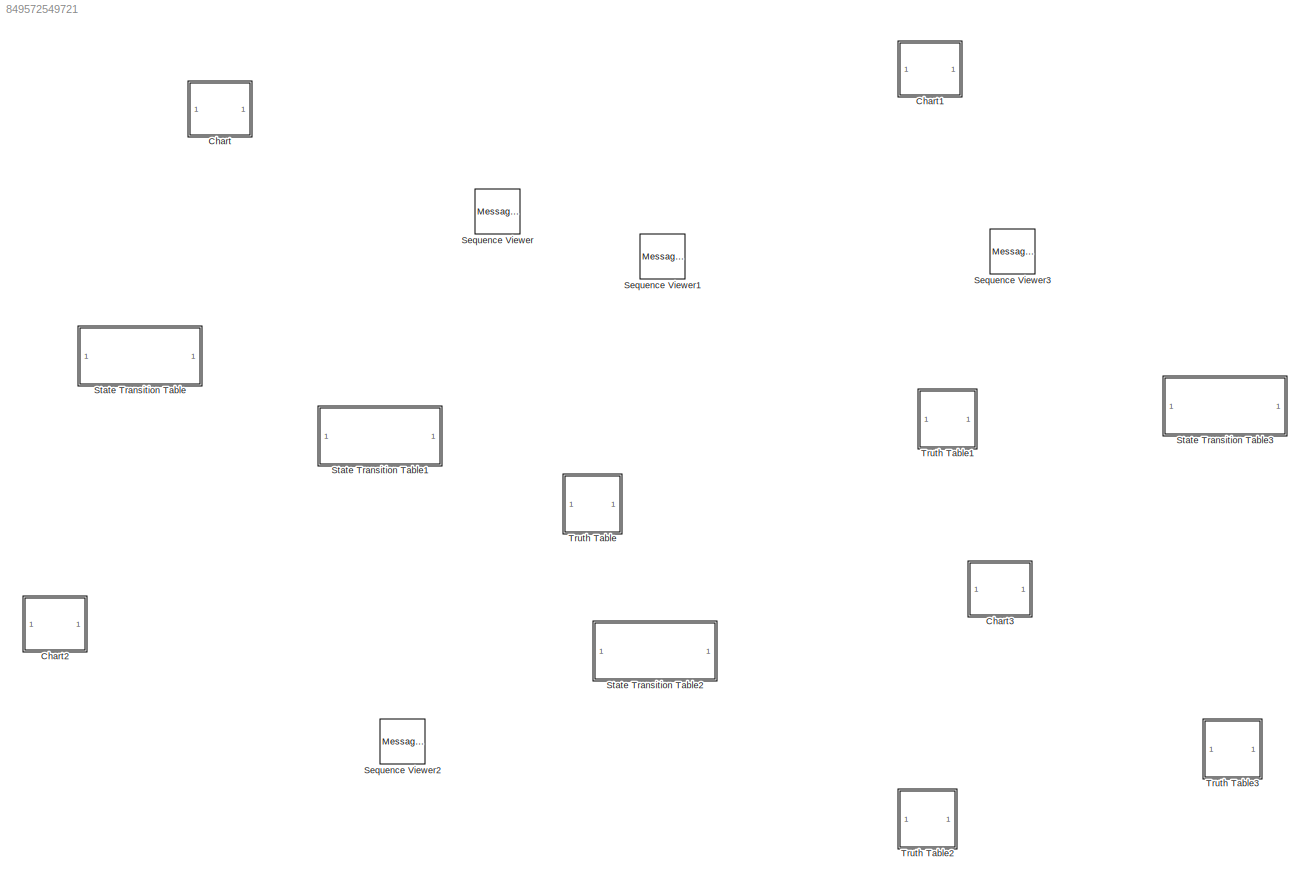
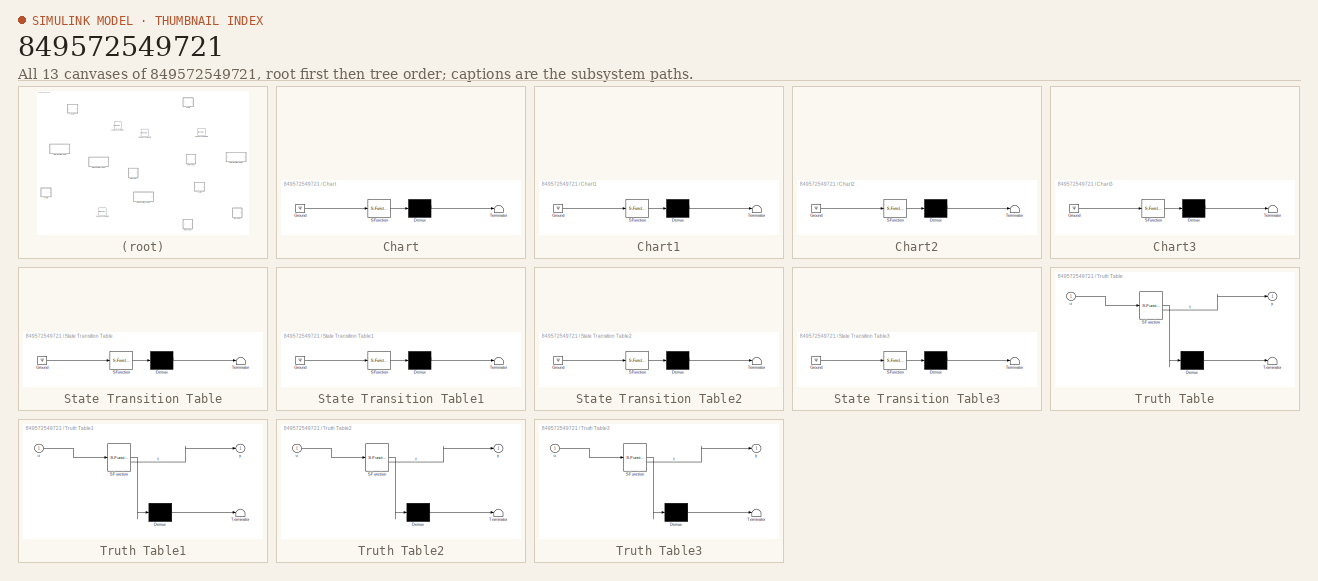
[diagram: thumbnail index - all 13 canvases of the model, root first then tree order]
MODEL slx_849572549721
KIND model
CONFIG AbsTol = auto
CONFIG EnableMultiTasking = off
CONFIG FixedStep = auto
CONFIG MaxStep = auto
CONFIG MinStep = auto
CONFIG RelTol = 1e-3
CONFIG SampleTimeConstraint = Unconstrained
CONFIG SolverName = VariableStepAuto
CONFIG StartTime = 0.0
CONFIG StopTime = 10.0
BLOCK [SubSystem] Chart
  ErrorFcn = Stateflow.Translate.translate
  PermitHierarchicalResolution = ExplicitOnly
  SFBlockType = Chart
  TreatAsAtomicUnit = on
BLOCK [Demux] Chart/ Demux 
  Outputs = 1
BLOCK [Ground] Chart/ Ground 
BLOCK [S-Function] Chart/ SFunction 
  EnableBusSupport = off
  FunctionName = sf_sfun
  PortCounts = [1 1]
  SFcnIsStateOwnerBlock = off
  SFunctionDeploymentMode = off
  Tag = Stateflow S-Function 3
BLOCK [Terminator] Chart/ Terminator 
BLOCK [SubSystem] Chart1
  ErrorFcn = Stateflow.Translate.translate
  PermitHierarchicalResolution = ExplicitOnly
  SFBlockType = Chart
  TreatAsAtomicUnit = on
BLOCK [Demux] Chart1/ Demux 
  Outputs = 1
BLOCK [Ground] Chart1/ Ground 
BLOCK [S-Function] Chart1/ SFunction 
  EnableBusSupport = off
  FunctionName = sf_sfun
  PortCounts = [1 1]
  SFcnIsStateOwnerBlock = off
  SFunctionDeploymentMode = off
  Tag = Stateflow S-Function 1
BLOCK [Terminator] Chart1/ Terminator 
BLOCK [SubSystem] Chart2
  ErrorFcn = Stateflow.Translate.translate
  PermitHierarchicalResolution = ExplicitOnly
  SFBlockType = Chart
  TreatAsAtomicUnit = on
BLOCK [Demux] Chart2/ Demux 
  Outputs = 1
BLOCK [Ground] Chart2/ Ground 
BLOCK [S-Function] Chart2/ SFunction 
  EnableBusSupport = off
  FunctionName = sf_sfun
  PortCounts = [1 1]
  SFcnIsStateOwnerBlock = off
  SFunctionDeploymentMode = off
  Tag = Stateflow S-Function 7
BLOCK [Terminator] Chart2/ Terminator 
BLOCK [SubSystem] Chart3
  ErrorFcn = Stateflow.Translate.translate
  PermitHierarchicalResolution = ExplicitOnly
  SFBlockType = Chart
  TreatAsAtomicUnit = on
BLOCK [Demux] Chart3/ Demux 
  Outputs = 1
BLOCK [Ground] Chart3/ Ground 
BLOCK [S-Function] Chart3/ SFunction 
  EnableBusSupport = off
  FunctionName = sf_sfun
  PortCounts = [1 1]
  SFcnIsStateOwnerBlock = off
  SFunctionDeploymentMode = off
  Tag = Stateflow S-Function 10
BLOCK [Terminator] Chart3/ Terminator 
BLOCK [MessageViewer] Sequence Viewer
BLOCK [MessageViewer] Sequence Viewer1
BLOCK [MessageViewer] Sequence Viewer2
BLOCK [MessageViewer] Sequence Viewer3
BLOCK [SubSystem] State Transition Table
  ErrorFcn = Stateflow.Translate.translate
  PermitHierarchicalResolution = ExplicitOnly
  SFBlockType = State Transition Table
  TreatAsAtomicUnit = on
BLOCK [Demux] State Transition Table/ Demux 
  Outputs = 1
BLOCK [Ground] State Transition Table/ Ground 
BLOCK [S-Function] State Transition Table/ SFunction 
  EnableBusSupport = off
  FunctionName = sf_sfun
  PortCounts = [1 1]
  SFcnIsStateOwnerBlock = off
  SFunctionDeploymentMode = off
  Tag = Stateflow S-Function 4
BLOCK [Terminator] State Transition Table/ Terminator 
BLOCK [SubSystem] State Transition Table1
  ErrorFcn = Stateflow.Translate.translate
  PermitHierarchicalResolution = ExplicitOnly
  SFBlockType = State Transition Table
  TreatAsAtomicUnit = on
BLOCK [Demux] State Transition Table1/ Demux 
  Outputs = 1
BLOCK [Ground] State Transition Table1/ Ground 
BLOCK [S-Function] State Transition Table1/ SFunction 
  EnableBusSupport = off
  FunctionName = sf_sfun
  PortCounts = [1 1]
  SFcnIsStateOwnerBlock = off
  SFunctionDeploymentMode = off
  Tag = Stateflow S-Function 6
BLOCK [Terminator] State Transition Table1/ Terminator 
BLOCK [SubSystem] State Transition Table2
  ErrorFcn = Stateflow.Translate.translate
  PermitHierarchicalResolution = ExplicitOnly
  SFBlockType = State Transition Table
  TreatAsAtomicUnit = on
BLOCK [Demux] State Transition Table2/ Demux 
  Outputs = 1
BLOCK [Ground] State Transition Table2/ Ground 
BLOCK [S-Function] State Transition Table2/ SFunction 
  EnableBusSupport = off
  FunctionName = sf_sfun
  PortCounts = [1 1]
  SFcnIsStateOwnerBlock = off
  SFunctionDeploymentMode = off
  Tag = Stateflow S-Function 8
BLOCK [Terminator] State Transition Table2/ Terminator 
BLOCK [SubSystem] State Transition Table3
  ErrorFcn = Stateflow.Translate.translate
  PermitHierarchicalResolution = ExplicitOnly
  SFBlockType = State Transition Table
  TreatAsAtomicUnit = on
BLOCK [Demux] State Transition Table3/ Demux 
  Outputs = 1
BLOCK [Ground] State Transition Table3/ Ground 
BLOCK [S-Function] State Transition Table3/ SFunction 
  EnableBusSupport = off
  FunctionName = sf_sfun
  PortCounts = [1 1]
  SFcnIsStateOwnerBlock = off
  SFunctionDeploymentMode = off
  Tag = Stateflow S-Function 11
BLOCK [Terminator] State Transition Table3/ Terminator 
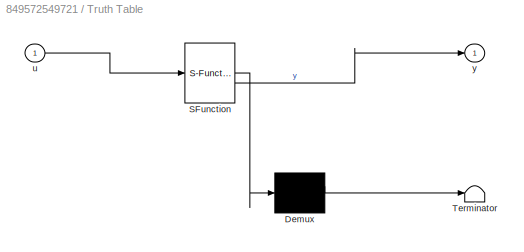
BLOCK [SubSystem] Truth Table
  ErrorFcn = Stateflow.Translate.translate
  PermitHierarchicalResolution = ExplicitOnly
  SFBlockType = Truth Table
  TreatAsAtomicUnit = on
BLOCK [Demux] Truth Table/ Demux 
  Outputs = 1
BLOCK [S-Function] Truth Table/ SFunction 
  EnableBusSupport = off
  FunctionName = sf_sfun
  PortCounts = [1 2]
  SFcnIsStateOwnerBlock = off
  SFunctionDeploymentMode = off
  Tag = Stateflow S-Function 2
BLOCK [Terminator] Truth Table/ Terminator 
BLOCK [Inport] Truth Table/u
BLOCK [Outport] Truth Table/y
  VectorParamsAs1DForOutWhenUnconnected = off
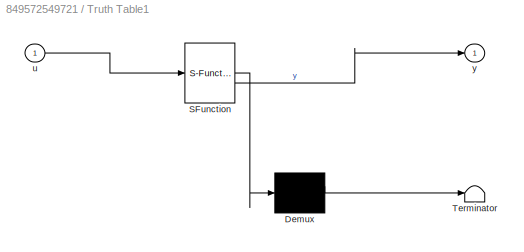
BLOCK [SubSystem] Truth Table1
  ErrorFcn = Stateflow.Translate.translate
  PermitHierarchicalResolution = ExplicitOnly
  SFBlockType = Truth Table
  TreatAsAtomicUnit = on
BLOCK [Demux] Truth Table1/ Demux 
  Outputs = 1
BLOCK [S-Function] Truth Table1/ SFunction 
  EnableBusSupport = off
  FunctionName = sf_sfun
  PortCounts = [1 2]
  SFcnIsStateOwnerBlock = off
  SFunctionDeploymentMode = off
  Tag = Stateflow S-Function 5
BLOCK [Terminator] Truth Table1/ Terminator 
BLOCK [Inport] Truth Table1/u
BLOCK [Outport] Truth Table1/y
  VectorParamsAs1DForOutWhenUnconnected = off
BLOCK [SubSystem] Truth Table2
  ErrorFcn = Stateflow.Translate.translate
  PermitHierarchicalResolution = ExplicitOnly
  SFBlockType = Truth Table
  TreatAsAtomicUnit = on
BLOCK [Demux] Truth Table2/ Demux 
  Outputs = 1
BLOCK [S-Function] Truth Table2/ SFunction 
  EnableBusSupport = off
  FunctionName = sf_sfun
  PortCounts = [1 2]
  SFcnIsStateOwnerBlock = off
  SFunctionDeploymentMode = off
  Tag = Stateflow S-Function 9
BLOCK [Terminator] Truth Table2/ Terminator 
BLOCK [Inport] Truth Table2/u
BLOCK [Outport] Truth Table2/y
  VectorParamsAs1DForOutWhenUnconnected = off
BLOCK [SubSystem] Truth Table3
  ErrorFcn = Stateflow.Translate.translate
  PermitHierarchicalResolution = ExplicitOnly
  SFBlockType = Truth Table
  TreatAsAtomicUnit = on
BLOCK [Demux] Truth Table3/ Demux 
  Outputs = 1
BLOCK [S-Function] Truth Table3/ SFunction 
  EnableBusSupport = off
  FunctionName = sf_sfun
  PortCounts = [1 2]
  SFcnIsStateOwnerBlock = off
  SFunctionDeploymentMode = off
  Tag = Stateflow S-Function 12
BLOCK [Terminator] Truth Table3/ Terminator 
BLOCK [Inport] Truth Table3/u
BLOCK [Outport] Truth Table3/y
  VectorParamsAs1DForOutWhenUnconnected = off
CHART Truth Table3 states=1 transitions=1
  STATE_LABEL 'tt_blk_kernel'
  STATE_LABEL 'SCRIPT:\nfunction y = fcn(u)\n\naVarTruthTableCondition_1 = false;\naVarTruthTableCondition_2 = false;\n\n\n% Example condition 1\n\naVarTruthTableCondition_1 = logical(u >= 0);\n\n% Example condition 2\n\naVarTruthTableCondition_2 = logical(u ^ 2 <= 1);\n\nif (aVarTruthTableCondition_1 && aVarTruthTableCondition_2)\n    aFcnTruthTableAction_1();\nelseif (~aVarTruthTableCondition_1 && ~aVarTruthTableCondition_2)\n ...<+295ch>'  <repeated x4 — deduplicated; at blocks: Truth Table3, Truth Table, Truth Table1, Truth Table2>
CHART Chart1 states=0 transitions=0
CHART Truth Table states=1 transitions=1
  STATE_LABEL 'tt_blk_kernel'
CHART Chart states=0 transitions=0
CHART State Transition Table states=2 transitions=2
  STATE_LABEL 'state1'
  STATE_LABEL 'state2'
CHART Truth Table1 states=1 transitions=1
  STATE_LABEL 'tt_blk_kernel'
CHART State Transition Table1 states=2 transitions=2
  STATE_LABEL 'state1'
  STATE_LABEL 'state2'
CHART Chart2 states=0 transitions=0
CHART State Transition Table2 states=2 transitions=2
  STATE_LABEL 'state1'
  STATE_LABEL 'state2'
CHART Truth Table2 states=1 transitions=1
  STATE_LABEL 'tt_blk_kernel'
CHART Chart3 states=0 transitions=0
CHART State Transition Table3 states=2 transitions=2
  STATE_LABEL 'state1'
  STATE_LABEL 'state2'
CHART  states=0 transitions=0
CHART  states=0 transitions=0
CHART  states=0 transitions=0
CHART  states=0 transitions=0
CHART  states=0 transitions=0
CHART  states=0 transitions=0
CHART  states=0 transitions=0
CHART  states=0 transitions=0
CHART  states=0 transitions=0
CHART  states=0 transitions=0
CHART  states=0 transitions=0
CHART  states=0 transitions=0
